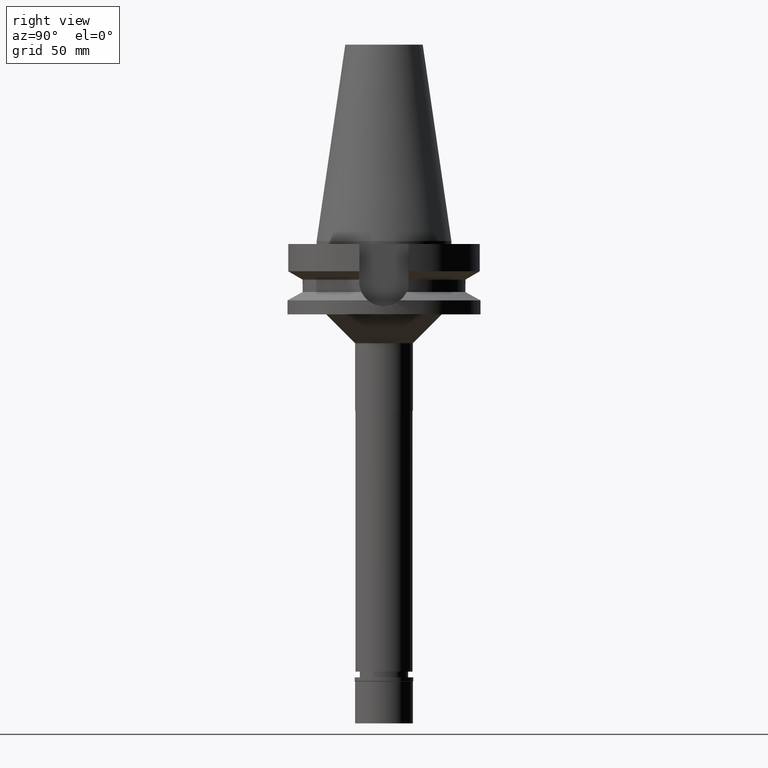
[diagram: clean part render]
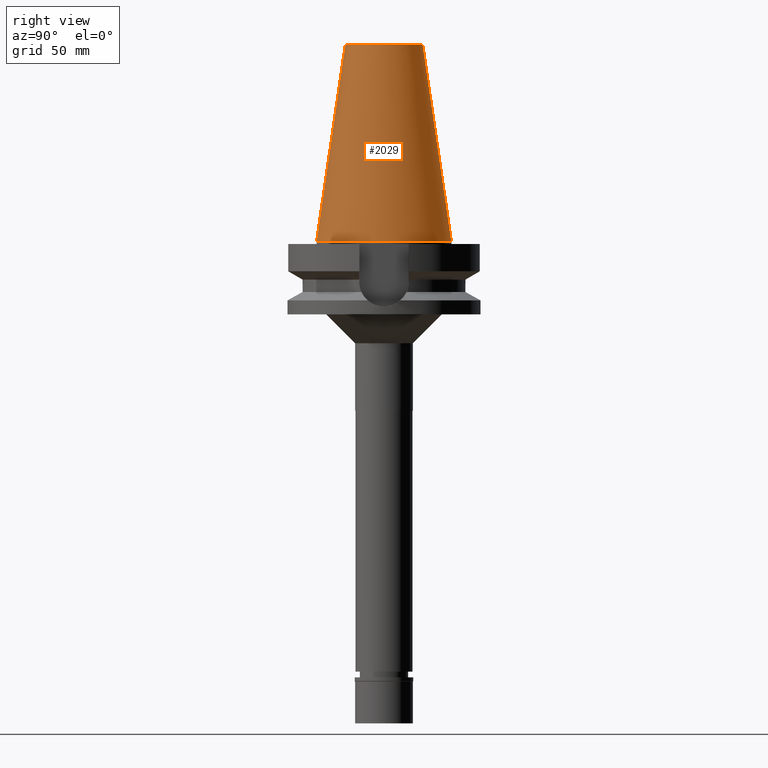
[diagram: same view with one face highlighted and labeled with its STEP entity id]
A machine part, right view. The second image highlights one B-rep face of the part: STEP entity #2029.
In plain terms, the highlighted conical surface has half-angle 8.297 deg.
Its self-contained STEP definition (entity closure, byte-faithful):
#47 = EDGE_CURVE ( 'NONE', #1047, #133, #383, .T. ) ;
#120 = ORIENTED_EDGE ( 'NONE', *, *, #202, .F. ) ;
#133 = VERTEX_POINT ( 'NONE', #2789 ) ;
#135 = FACE_OUTER_BOUND ( 'NONE', #1320, .T. ) ;
#138 = DIRECTION ( 'NONE',  ( 0.0000000000000000000, 0.0000000000000000000, -1.000000000000000000 ) ) ;
#202 = EDGE_CURVE ( 'NONE', #1619, #251, #2015, .T. ) ;
#251 = VERTEX_POINT ( 'NONE', #1121 ) ;
#361 = CARTESIAN_POINT ( 'NONE',  ( 0.0000000000000000000, 1.847992019912999597E-14, 3.979039320256999774E-13 ) ) ;
#383 = CIRCLE ( 'NONE', #647, 20.07942971896000017 ) ;
#533 = DIRECTION ( 'NONE',  ( 0.0000000000000000000, 0.1443043893538948075, -0.9895333461855641000 ) ) ;
#548 = LINE ( 'NONE', #1565, #923 ) ;
#573 = CARTESIAN_POINT ( 'NONE',  ( 0.0000000000000000000, 34.92499999999999716, 5.400124791776999712E-13 ) ) ;
#619 = CARTESIAN_POINT ( 'NONE',  ( 0.0000000000000000000, 1.847992019912999597E-14, 101.7999999999999972 ) ) ;
#647 = AXIS2_PLACEMENT_3D ( 'NONE', #619, #138, #3082 ) ;
#858 = DIRECTION ( 'NONE',  ( 0.0000000000000000000, 0.0000000000000000000, -1.000000000000000000 ) ) ;
#914 = DIRECTION ( 'NONE',  ( 0.0000000000000000000, 0.0000000000000000000, -1.000000000000000000 ) ) ;
#923 = VECTOR ( 'NONE', #1311, 1000.000000000000114 ) ;
#1030 = LINE ( 'NONE', #3028, #2078 ) ;
#1047 = VERTEX_POINT ( 'NONE', #2529 ) ;
#1121 = CARTESIAN_POINT ( 'NONE',  ( 0.0000000000000000000, -34.92499999999999716, 5.400124791776999712E-13 ) ) ;
#1311 = DIRECTION ( 'NONE',  ( 0.0000000000000000000, -0.1443043893538948075, -0.9895333461855641000 ) ) ;
#1320 = EDGE_LOOP ( 'NONE', ( #2207, #1339, #120, #2784 ) ) ;
#1339 = ORIENTED_EDGE ( 'NONE', *, *, #1814, .T. ) ;
#1565 = CARTESIAN_POINT ( 'NONE',  ( 0.0000000000000000000, -20.07942971896000017, 101.7999999999999972 ) ) ;
#1619 = VERTEX_POINT ( 'NONE', #573 ) ;
#1761 = AXIS2_PLACEMENT_3D ( 'NONE', #361, #858, #2338 ) ;
#1814 = EDGE_CURVE ( 'NONE', #133, #251, #548, .T. ) ;
#1933 = EDGE_CURVE ( 'NONE', #1047, #1619, #1030, .T. ) ;
#1981 = DIRECTION ( 'NONE',  ( 0.0000000000000000000, -1.000000000000000000, 0.0000000000000000000 ) ) ;
#2015 = CIRCLE ( 'NONE', #1761, 34.92499999999999716 ) ;
#2029 = ADVANCED_FACE ( 'NONE', ( #135 ), #2391, .T. ) ;
#2078 = VECTOR ( 'NONE', #533, 1000.000000000000114 ) ;
#2207 = ORIENTED_EDGE ( 'NONE', *, *, #47, .T. ) ;
#2338 = DIRECTION ( 'NONE',  ( 0.0000000000000000000, 1.000000000000000000, 0.0000000000000000000 ) ) ;
#2373 = CARTESIAN_POINT ( 'NONE',  ( 0.0000000000000000000, 1.847992019912999597E-14, 50.89999999999999858 ) ) ;
#2391 = CONICAL_SURFACE ( 'NONE', #3120, 27.50221485948000222, 0.1448099680379422438 ) ;
#2529 = CARTESIAN_POINT ( 'NONE',  ( 0.0000000000000000000, 20.07942971896000017, 101.7999999999999972 ) ) ;
#2784 = ORIENTED_EDGE ( 'NONE', *, *, #1933, .F. ) ;
#2789 = CARTESIAN_POINT ( 'NONE',  ( 0.0000000000000000000, -20.07942971896000017, 101.7999999999999972 ) ) ;
#3028 = CARTESIAN_POINT ( 'NONE',  ( 0.0000000000000000000, 20.07942971896000017, 101.7999999999999972 ) ) ;
#3082 = DIRECTION ( 'NONE',  ( 0.0000000000000000000, 1.000000000000000000, 0.0000000000000000000 ) ) ;
#3120 = AXIS2_PLACEMENT_3D ( 'NONE', #2373, #914, #1981 ) ;